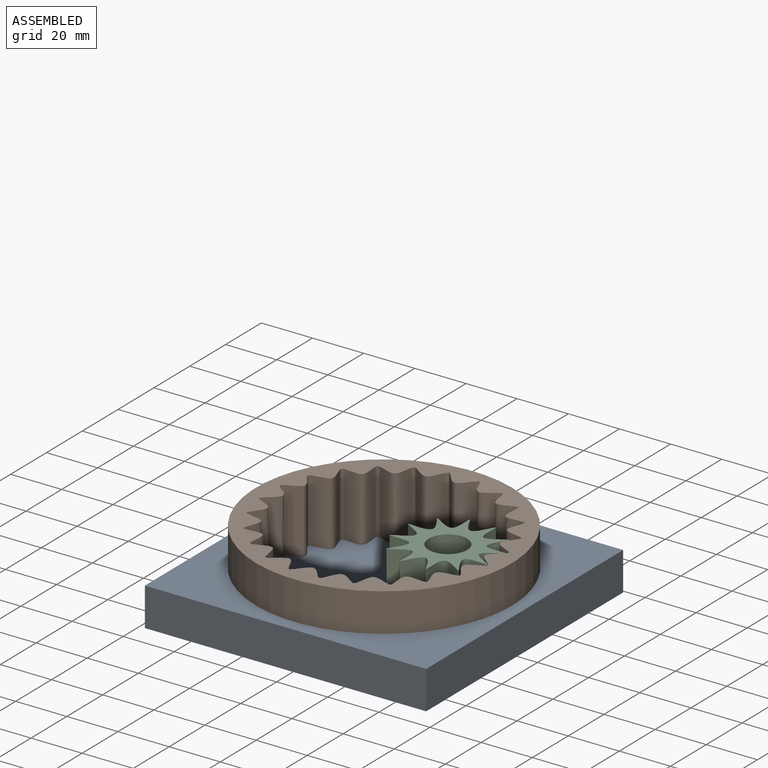
[diagram: assembled view]
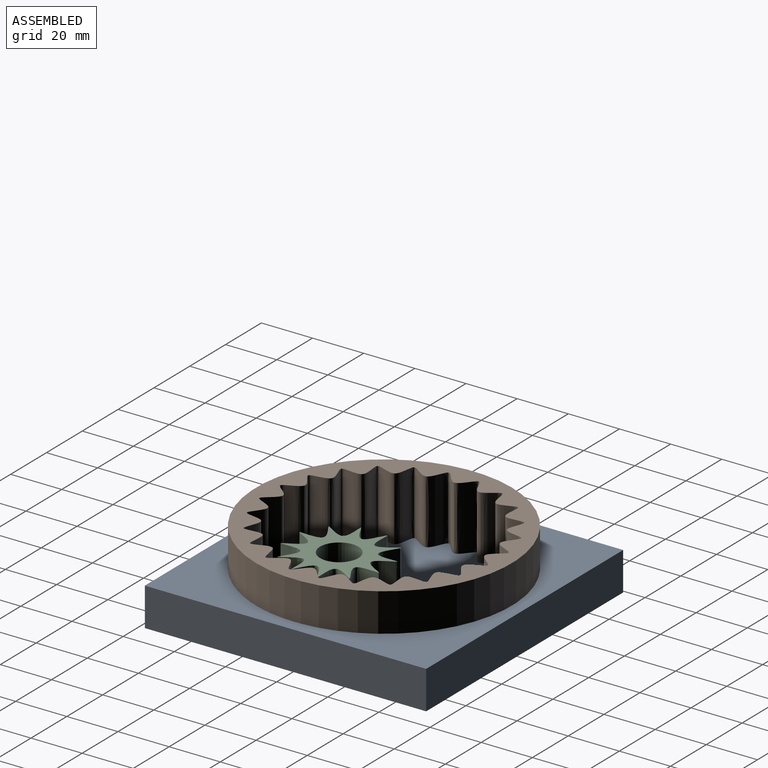
[diagram: assembled view, second angle]
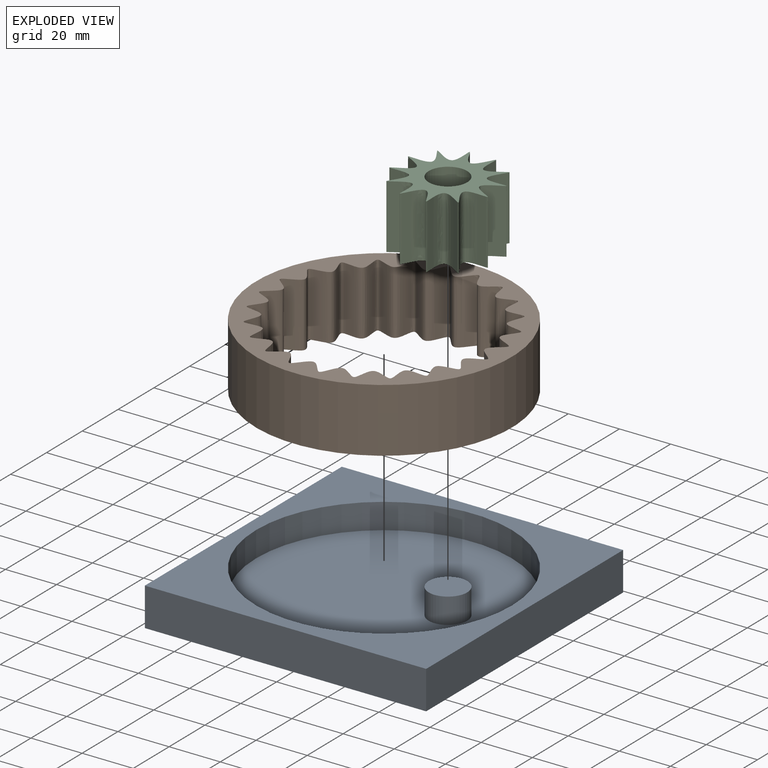
[diagram: exploded view]
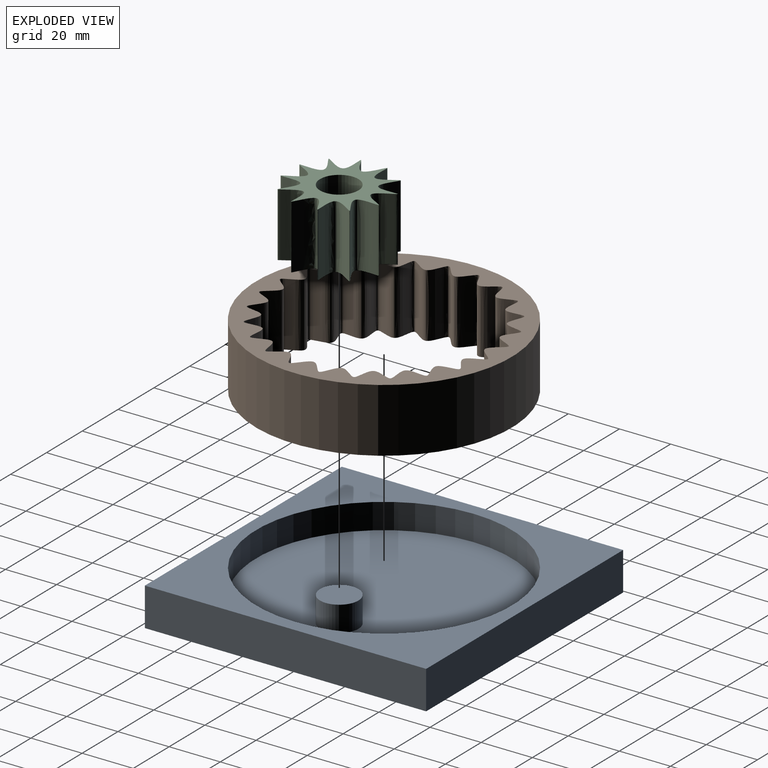
[diagram: exploded view, second angle]
ASSEMBLY  parts=3 mates=2
PART A: 10 faces, bbox 110x110x15 mm
  f0: plane 100x100mm, normal (0,0,1), area 7676.4mm2, adj f6,f8
  f1: plane 110x15mm, normal (1,0,0), area 1650mm2, adj f2,f4,f5,f7
  f2: plane 110x15mm, normal (0,1,0), area 1650mm2, adj f1,f3,f5,f7
  f3: plane 110x15mm, normal (-1,0,0), area 1650mm2, adj f2,f4,f5,f7
  f4: plane 110x15mm, normal (0,-1,0), area 1650mm2, adj f1,f3,f5,f7
  f5: plane 110x110mm, normal (0,0,-1), area 12100mm2, adj f1,f2,f3,f4
  f6: cylinder r=50mm len=100mm, axis (0,0,-1), area 3141.6mm2, adj f0,f7
  f7: plane 110x110mm, normal (0,0,1), area 4246mm2, adj f1,f2,f3,f4,f6
  f8: cylinder r=7.52mm len=15.04mm, axis (0,0,-1), area 472.5mm2, adj f0,f9
  f9: plane 15.04x15.04mm, normal (0,0,1), area 177.6mm2, adj f8
PART B: 267 faces, bbox 100x100x25 mm
  f0: extruded ~25x0.72mm, area 19.2mm2, adj f1,f12,f13,f266
  f1: extruded ~25x0.83mm, area 22.1mm2, adj f0,f2,f12,f13
  f2: extruded ~25x1.29mm, area 40.5mm2, adj f1,f3,f12,f13
  f3: extruded ~25x1.31mm, area 39mm2, adj f2,f4,f12,f13
  f4: extruded ~25x0.04mm, area 1.5mm2, adj f3,f5,f12,f13
  f5: extruded ~25x1.18mm, area 41.4mm2, adj f4,f6,f12,f13
  f6: plane 25x1.18mm, normal (-0.7,0.71,0), area 41.4mm2, adj f5,f7,f12,f13
  f7: extruded ~25x2.02mm, area 62.2mm2, adj f6,f8,f12,f13
  f8: extruded ~25x0.58mm, area 14.8mm2, adj f7,f9,f12,f13
  f9: extruded ~25x2.33mm, area 77mm2, adj f8,f10,f12,f13
  f10: plane 25x1.36mm, normal (-0.57,-0.82,0), area 41.4mm2, adj f9,f12,f13,f14
  f11: cylinder r=50mm len=100mm, axis (0,0,-1), area 7854mm2, adj f12,f13
  f12: plane 100x100mm, normal (0,0,1), area 2344.1mm2, adj f0,f1,f2,f3,f4,f5,f6,f7
  f13: plane 100x100mm, normal (0,0,-1), area 2344.1mm2, adj f0,f1,f2,f3,f4,f5,f6,f7
  f14: extruded ~25x0.63mm, area 19.2mm2, adj f10,f12,f13,f15
  f15: extruded ~25x0.72mm, area 22.1mm2, adj f12,f13,f14,f16
  f16: extruded ~25x1.2mm, area 40.5mm2, adj f12,f13,f15,f17
  f17: extruded ~25x1.07mm, area 39mm2, adj f12,f13,f16,f18
  f18: extruded ~25x0.05mm, area 1.5mm2, adj f12,f13,f17,f19
  f19: extruded ~25x1.44mm, area 41.4mm2, adj f12,f13,f18,f20
  f20: plane 25x1.44mm, normal (-0.49,0.87,0), area 41.4mm2, adj f12,f13,f19,f21
  f21: extruded ~25x1.89mm, area 62.2mm2, adj f12,f13,f20,f22
  f22: extruded ~25x0.55mm, area 14.8mm2, adj f12,f13,f21,f23
  f23: extruded ~25x2.74mm, area 77mm2, adj f12,f13,f22,f24
  f24: plane 25x1.27mm, normal (-0.77,-0.64,0), area 41.4mm2, adj f12,f13,f23,f25
  f25: extruded ~25x0.59mm, area 19.2mm2, adj f12,f13,f24,f26
  f26: extruded ~25x0.68mm, area 22.1mm2, adj f12,f13,f25,f27
  f27: extruded ~25x1.42mm, area 40.5mm2, adj f12,f13,f26,f28
  f28: extruded ~25x1.31mm, area 39mm2, adj f12,f13,f27,f29
  f29: extruded ~25x0.06mm, area 1.5mm2, adj f12,f13,f28,f30
  f30: extruded ~25x1.6mm, area 41.4mm2, adj f12,f13,f29,f31
  f31: plane 25x1.6mm, normal (-0.25,0.97,0), area 41.4mm2, adj f12,f13,f30,f32
  f32: extruded ~25x2.23mm, area 62.2mm2, adj f12,f13,f31,f33
  f33: extruded ~25x0.47mm, area 14.8mm2, adj f12,f13,f32,f34
  f34: extruded ~25x2.96mm, area 77mm2, adj f12,f13,f33,f35
  f35: plane 25x1.5mm, normal (-0.91,-0.42,0), area 41.4mm2, adj f12,f13,f34,f36
  f36: extruded ~25x0.7mm, area 19.2mm2, adj f12,f13,f35,f37
  f37: extruded ~25x0.8mm, area 22.1mm2, adj f12,f13,f36,f38
  f38: extruded ~25x1.54mm, area 40.5mm2, adj f12,f13,f37,f39
  f39: extruded ~25x1.46mm, area 39mm2, adj f12,f13,f38,f40
  f40: extruded ~25x0.06mm, area 1.5mm2, adj f12,f13,f39,f41
  f41: extruded ~25x1.66mm, area 41.4mm2, adj f12,f13,f40,f42
  f42: plane 25x1.66mm, normal (0.01,1,0), area 41.4mm2, adj f12,f13,f41,f43
  f43: extruded ~25x2.43mm, area 62.2mm2, adj f12,f13,f42,f44
  f44: extruded ~25x0.46mm, area 14.8mm2, adj f12,f13,f43,f45
  f45: extruded ~25x2.98mm, area 77mm2, adj f12,f13,f44,f46
  f46: plane 25x1.63mm, normal (-0.98,-0.17,0), area 41.4mm2, adj f12,f13,f45,f47
  f47: extruded ~25x0.76mm, area 19.2mm2, adj f12,f13,f46,f48
  f48: extruded ~25x0.87mm, area 22.1mm2, adj f12,f13,f47,f49
  f49: extruded ~25x1.56mm, area 40.5mm2, adj f12,f13,f48,f50
  f50: extruded ~25x1.51mm, area 39mm2, adj f12,f13,f49,f51
  f51: extruded ~25x0.06mm, area 1.5mm2, adj f12,f13,f50,f52
  f52: extruded ~25x1.6mm, area 41.4mm2, adj f12,f13,f51,f53
  f53: plane 25x1.6mm, normal (0.27,0.96,0), area 41.4mm2, adj f12,f13,f52,f54
  f54: extruded ~25x2.46mm, area 62.2mm2, adj f12,f13,f53,f55
  f55: extruded ~25x0.54mm, area 14.8mm2, adj f12,f13,f54,f56
  f56: extruded ~25x2.8mm, area 77mm2, adj f12,f13,f55,f57
  f57: plane 25x1.65mm, normal (-1,0.09,0), area 41.4mm2, adj f12,f13,f56,f58
  f58: extruded ~25x0.77mm, area 19.2mm2, adj f12,f13,f57,f59
  f59: extruded ~25x0.88mm, area 22.1mm2, adj f12,f13,f58,f60
  f60: extruded ~25x1.47mm, area 40.5mm2, adj f12,f13,f59,f61
  f61: extruded ~25x1.46mm, area 39mm2, adj f12,f13,f60,f62
  f62: extruded ~25x0.05mm, area 1.5mm2, adj f12,f13,f61,f63
  f63: extruded ~25x1.43mm, area 41.4mm2, adj f12,f13,f62,f64
  f64: plane 25x1.43mm, normal (0.51,0.86,0), area 41.4mm2, adj f12,f13,f63,f65
  f65: extruded ~25x2.32mm, area 62.2mm2, adj f12,f13,f64,f66
  f66: extruded ~25x0.58mm, area 14.8mm2, adj f12,f13,f65,f67
  f67: extruded ~25x2.43mm, area 77mm2, adj f12,f13,f66,f68
  f68: plane 25x1.56mm, normal (-0.94,0.34,0), area 41.4mm2, adj f12,f13,f67,f69
  f69: extruded ~25x0.72mm, area 19.2mm2, adj f12,f13,f68,f70
  f70: extruded ~25x0.83mm, area 22.1mm2, adj f12,f13,f69,f71
  f71: extruded ~25x1.29mm, area 40.5mm2, adj f12,f13,f70,f72
  f72: extruded ~25x1.31mm, area 39mm2, adj f12,f13,f71,f73
  f73: extruded ~25x0.04mm, area 1.5mm2, adj f12,f13,f72,f74
  f74: extruded ~25x1.18mm, area 41.4mm2, adj f12,f13,f73,f75
  f75: plane 25x1.18mm, normal (0.71,0.7,0), area 41.4mm2, adj f12,f13,f74,f76
  f76: extruded ~25x2.02mm, area 62.2mm2, adj f12,f13,f75,f77
  f77: extruded ~25x0.58mm, area 14.8mm2, adj f12,f13,f76,f78
  f78: extruded ~25x2.33mm, area 77mm2, adj f12,f13,f77,f79
  f79: plane 25x1.36mm, normal (-0.82,0.57,0), area 41.4mm2, adj f12,f13,f78,f80
  f80: extruded ~25x0.63mm, area 19.2mm2, adj f12,f13,f79,f81
  f81: extruded ~25x0.72mm, area 22.1mm2, adj f12,f13,f80,f82
  f82: extruded ~25x1.2mm, area 40.5mm2, adj f12,f13,f81,f83
  f83: extruded ~25x1.07mm, area 39mm2, adj f12,f13,f82,f84
  f84: extruded ~25x0.05mm, area 1.5mm2, adj f12,f13,f83,f85
  f85: extruded ~25x1.44mm, area 41.4mm2, adj f12,f13,f84,f86
  f86: plane 25x1.44mm, normal (0.87,0.49,0), area 41.4mm2, adj f12,f13,f85,f87
  f87: extruded ~25x1.89mm, area 62.2mm2, adj f12,f13,f86,f88
  f88: extruded ~25x0.55mm, area 14.8mm2, adj f12,f13,f87,f89
  f89: extruded ~25x2.74mm, area 77mm2, adj f12,f13,f88,f90
  f90: plane 25x1.27mm, normal (-0.64,0.77,0), area 41.4mm2, adj f12,f13,f89,f91
  f91: extruded ~25x0.59mm, area 19.2mm2, adj f12,f13,f90,f92
  f92: extruded ~25x0.68mm, area 22.1mm2, adj f12,f13,f91,f93
  f93: extruded ~25x1.42mm, area 40.5mm2, adj f12,f13,f92,f94
  f94: extruded ~25x1.31mm, area 39mm2, adj f12,f13,f93,f95
  f95: extruded ~25x0.06mm, area 1.5mm2, adj f12,f13,f94,f96
  f96: extruded ~25x1.6mm, area 41.4mm2, adj f12,f13,f95,f97
  f97: plane 25x1.6mm, normal (0.97,0.25,0), area 41.4mm2, adj f12,f13,f96,f98
  f98: extruded ~25x2.23mm, area 62.2mm2, adj f12,f13,f97,f99
  f99: extruded ~25x0.47mm, area 14.8mm2, adj f12,f13,f98,f100
  f100: extruded ~25x2.96mm, area 77mm2, adj f12,f13,f99,f101
  f101: plane 25x1.5mm, normal (-0.42,0.91,0), area 41.4mm2, adj f12,f13,f100,f102
  f102: extruded ~25x0.7mm, area 19.2mm2, adj f12,f13,f101,f103
  f103: extruded ~25x0.8mm, area 22.1mm2, adj f12,f13,f102,f104
  f104: extruded ~25x1.54mm, area 40.5mm2, adj f12,f13,f103,f105
  f105: extruded ~25x1.46mm, area 39mm2, adj f12,f13,f104,f106
  f106: extruded ~25x0.06mm, area 1.5mm2, adj f12,f13,f105,f107
  f107: extruded ~25x1.66mm, area 41.4mm2, adj f12,f13,f106,f108
  f108: plane 25x1.66mm, normal (1,-0.01,0), area 41.4mm2, adj f12,f13,f107,f109
  f109: extruded ~25x2.43mm, area 62.2mm2, adj f12,f13,f108,f110
  f110: extruded ~25x0.46mm, area 14.8mm2, adj f12,f13,f109,f111
  f111: extruded ~25x2.98mm, area 77mm2, adj f12,f13,f110,f112
  f112: plane 25x1.63mm, normal (-0.17,0.98,0), area 41.4mm2, adj f12,f13,f111,f113
  f113: extruded ~25x0.76mm, area 19.2mm2, adj f12,f13,f112,f114
  f114: extruded ~25x0.87mm, area 22.1mm2, adj f12,f13,f113,f115
  f115: extruded ~25x1.56mm, area 40.5mm2, adj f12,f13,f114,f116
  f116: extruded ~25x1.51mm, area 39mm2, adj f12,f13,f115,f117
  f117: extruded ~25x0.06mm, area 1.5mm2, adj f12,f13,f116,f118
  f118: extruded ~25x1.6mm, area 41.4mm2, adj f12,f13,f117,f119
  f119: plane 25x1.6mm, normal (0.96,-0.27,0), area 41.4mm2, adj f12,f13,f118,f120
  f120: extruded ~25x2.46mm, area 62.2mm2, adj f12,f13,f119,f121
  f121: extruded ~25x0.54mm, area 14.8mm2, adj f12,f13,f120,f122
  f122: extruded ~25x2.8mm, area 77mm2, adj f12,f13,f121,f123
  f123: plane 25x1.65mm, normal (0.09,1,0), area 41.4mm2, adj f12,f13,f122,f124
  f124: extruded ~25x0.77mm, area 19.2mm2, adj f12,f13,f123,f125
  f125: extruded ~25x0.88mm, area 22.1mm2, adj f12,f13,f124,f126
  f126: extruded ~25x1.47mm, area 40.5mm2, adj f12,f13,f125,f127
  f127: extruded ~25x1.46mm, area 39mm2, adj f12,f13,f126,f128
  f128: extruded ~25x0.05mm, area 1.5mm2, adj f12,f13,f127,f129
  f129: extruded ~25x1.43mm, area 41.4mm2, adj f12,f13,f128,f130
  f130: plane 25x1.43mm, normal (0.86,-0.51,0), area 41.4mm2, adj f12,f13,f129,f131
  f131: extruded ~25x2.32mm, area 62.2mm2, adj f12,f13,f130,f132
  f132: extruded ~25x0.58mm, area 14.8mm2, adj f12,f13,f131,f133
  f133: extruded ~25x2.43mm, area 77mm2, adj f12,f13,f132,f134
  f134: plane 25x1.56mm, normal (0.34,0.94,0), area 41.4mm2, adj f12,f13,f133,f135
  f135: extruded ~25x0.72mm, area 19.2mm2, adj f12,f13,f134,f136
  f136: extruded ~25x0.83mm, area 22.1mm2, adj f12,f13,f135,f137
  f137: extruded ~25x1.29mm, area 40.5mm2, adj f12,f13,f136,f138
  f138: extruded ~25x1.31mm, area 39mm2, adj f12,f13,f137,f139
  f139: extruded ~25x0.04mm, area 1.5mm2, adj f12,f13,f138,f140
  f140: extruded ~25x1.18mm, area 41.4mm2, adj f12,f13,f139,f141
  f141: plane 25x1.18mm, normal (0.7,-0.71,0), area 41.4mm2, adj f12,f13,f140,f142
  f142: extruded ~25x2.02mm, area 62.2mm2, adj f12,f13,f141,f143
  f143: extruded ~25x0.58mm, area 14.8mm2, adj f12,f13,f142,f144
  f144: extruded ~25x2.33mm, area 77mm2, adj f12,f13,f143,f145
  f145: plane 25x1.36mm, normal (0.57,0.82,0), area 41.4mm2, adj f12,f13,f144,f146
  f146: extruded ~25x0.63mm, area 19.2mm2, adj f12,f13,f145,f147
  f147: extruded ~25x0.72mm, area 22.1mm2, adj f12,f13,f146,f148
  f148: extruded ~25x1.2mm, area 40.5mm2, adj f12,f13,f147,f149
  f149: extruded ~25x1.07mm, area 39mm2, adj f12,f13,f148,f150
  f150: extruded ~25x0.05mm, area 1.5mm2, adj f12,f13,f149,f151
  f151: extruded ~25x1.44mm, area 41.4mm2, adj f12,f13,f150,f152
  f152: plane 25x1.44mm, normal (0.49,-0.87,0), area 41.4mm2, adj f12,f13,f151,f153
  f153: extruded ~25x1.89mm, area 62.2mm2, adj f12,f13,f152,f154
  f154: extruded ~25x0.55mm, area 14.8mm2, adj f12,f13,f153,f155
  f155: extruded ~25x2.74mm, area 77mm2, adj f12,f13,f154,f156
  f156: plane 25x1.27mm, normal (0.77,0.64,0), area 41.4mm2, adj f12,f13,f155,f157
  f157: extruded ~25x0.59mm, area 19.2mm2, adj f12,f13,f156,f158
  f158: extruded ~25x0.68mm, area 22.1mm2, adj f12,f13,f157,f159
  f159: extruded ~25x1.42mm, area 40.5mm2, adj f12,f13,f158,f160
  f160: extruded ~25x1.31mm, area 39mm2, adj f12,f13,f159,f161
  f161: extruded ~25x0.06mm, area 1.5mm2, adj f12,f13,f160,f162
  f162: extruded ~25x1.6mm, area 41.4mm2, adj f12,f13,f161,f163
  f163: plane 25x1.6mm, normal (0.25,-0.97,0), area 41.4mm2, adj f12,f13,f162,f164
  f164: extruded ~25x2.23mm, area 62.2mm2, adj f12,f13,f163,f165
  f165: extruded ~25x0.47mm, area 14.8mm2, adj f12,f13,f164,f166
  f166: extruded ~25x2.96mm, area 77mm2, adj f12,f13,f165,f167
  f167: plane 25x1.5mm, normal (0.91,0.42,0), area 41.4mm2, adj f12,f13,f166,f168
  f168: extruded ~25x0.7mm, area 19.2mm2, adj f12,f13,f167,f169
  f169: extruded ~25x0.8mm, area 22.1mm2, adj f12,f13,f168,f170
  f170: extruded ~25x1.54mm, area 40.5mm2, adj f12,f13,f169,f171
  f171: extruded ~25x1.46mm, area 39mm2, adj f12,f13,f170,f172
  f172: extruded ~25x0.06mm, area 1.5mm2, adj f12,f13,f171,f173
  f173: extruded ~25x1.66mm, area 41.4mm2, adj f12,f13,f172,f174
  f174: plane 25x1.66mm, normal (-0.01,-1,0), area 41.4mm2, adj f12,f13,f173,f175
  f175: extruded ~25x2.43mm, area 62.2mm2, adj f12,f13,f174,f176
  f176: extruded ~25x0.46mm, area 14.8mm2, adj f12,f13,f175,f177
  f177: extruded ~25x2.98mm, area 77mm2, adj f12,f13,f176,f178
  f178: plane 25x1.63mm, normal (0.98,0.17,0), area 41.4mm2, adj f12,f13,f177,f179
  f179: extruded ~25x0.76mm, area 19.2mm2, adj f12,f13,f178,f180
  f180: extruded ~25x0.87mm, area 22.1mm2, adj f12,f13,f179,f181
  f181: extruded ~25x1.56mm, area 40.5mm2, adj f12,f13,f180,f182
  f182: extruded ~25x1.51mm, area 39mm2, adj f12,f13,f181,f183
  f183: extruded ~25x0.06mm, area 1.5mm2, adj f12,f13,f182,f184
  f184: extruded ~25x1.6mm, area 41.4mm2, adj f12,f13,f183,f185
  f185: plane 25x1.6mm, normal (-0.27,-0.96,0), area 41.4mm2, adj f12,f13,f184,f186
  f186: extruded ~25x2.46mm, area 62.2mm2, adj f12,f13,f185,f187
  f187: extruded ~25x0.54mm, area 14.8mm2, adj f12,f13,f186,f188
  f188: extruded ~25x2.8mm, area 77mm2, adj f12,f13,f187,f189
  f189: plane 25x1.65mm, normal (1,-0.09,0), area 41.4mm2, adj f12,f13,f188,f190
  f190: extruded ~25x0.77mm, area 19.2mm2, adj f12,f13,f189,f191
  f191: extruded ~25x0.88mm, area 22.1mm2, adj f12,f13,f190,f192
  f192: extruded ~25x1.47mm, area 40.5mm2, adj f12,f13,f191,f193
  f193: extruded ~25x1.46mm, area 39mm2, adj f12,f13,f192,f194
  f194: extruded ~25x0.05mm, area 1.5mm2, adj f12,f13,f193,f195
  f195: extruded ~25x1.43mm, area 41.4mm2, adj f12,f13,f194,f196
  f196: plane 25x1.43mm, normal (-0.51,-0.86,0), area 41.4mm2, adj f12,f13,f195,f197
  f197: extruded ~25x2.32mm, area 62.2mm2, adj f12,f13,f196,f198
  f198: extruded ~25x0.58mm, area 14.8mm2, adj f12,f13,f197,f199
  f199: extruded ~25x2.43mm, area 77mm2, adj f12,f13,f198,f200
  f200: plane 25x1.56mm, normal (0.94,-0.34,0), area 41.4mm2, adj f12,f13,f199,f201
  f201: extruded ~25x0.72mm, area 19.2mm2, adj f12,f13,f200,f202
  f202: extruded ~25x0.83mm, area 22.1mm2, adj f12,f13,f201,f203
  f203: extruded ~25x1.29mm, area 40.5mm2, adj f12,f13,f202,f204
  f204: extruded ~25x1.31mm, area 39mm2, adj f12,f13,f203,f205
  f205: extruded ~25x0.04mm, area 1.5mm2, adj f12,f13,f204,f206
  f206: extruded ~25x1.18mm, area 41.4mm2, adj f12,f13,f205,f207
  f207: plane 25x1.18mm, normal (-0.71,-0.7,0), area 41.4mm2, adj f12,f13,f206,f208
  f208: extruded ~25x2.02mm, area 62.2mm2, adj f12,f13,f207,f209
  f209: extruded ~25x0.58mm, area 14.8mm2, adj f12,f13,f208,f210
  f210: extruded ~25x2.33mm, area 77mm2, adj f12,f13,f209,f211
  f211: plane 25x1.36mm, normal (0.82,-0.57,0), area 41.4mm2, adj f12,f13,f210,f212
  f212: extruded ~25x0.63mm, area 19.2mm2, adj f12,f13,f211,f213
  f213: extruded ~25x0.72mm, area 22.1mm2, adj f12,f13,f212,f214
  f214: extruded ~25x1.2mm, area 40.5mm2, adj f12,f13,f213,f215
  f215: extruded ~25x1.07mm, area 39mm2, adj f12,f13,f214,f216
  f216: extruded ~25x0.05mm, area 1.5mm2, adj f12,f13,f215,f217
  f217: extruded ~25x1.44mm, area 41.4mm2, adj f12,f13,f216,f218
  f218: plane 25x1.44mm, normal (-0.87,-0.49,0), area 41.4mm2, adj f12,f13,f217,f219
  f219: extruded ~25x1.89mm, area 62.2mm2, adj f12,f13,f218,f220
  f220: extruded ~25x0.55mm, area 14.8mm2, adj f12,f13,f219,f221
  f221: extruded ~25x2.74mm, area 77mm2, adj f12,f13,f220,f222
  f222: plane 25x1.27mm, normal (0.64,-0.77,0), area 41.4mm2, adj f12,f13,f221,f223
  f223: extruded ~25x0.59mm, area 19.2mm2, adj f12,f13,f222,f224
  f224: extruded ~25x0.68mm, area 22.1mm2, adj f12,f13,f223,f225
  f225: extruded ~25x1.42mm, area 40.5mm2, adj f12,f13,f224,f226
  f226: extruded ~25x1.31mm, area 39mm2, adj f12,f13,f225,f227
  f227: extruded ~25x0.06mm, area 1.5mm2, adj f12,f13,f226,f228
  f228: extruded ~25x1.6mm, area 41.4mm2, adj f12,f13,f227,f229
  f229: plane 25x1.6mm, normal (-0.97,-0.25,0), area 41.4mm2, adj f12,f13,f228,f230
  f230: extruded ~25x2.23mm, area 62.2mm2, adj f12,f13,f229,f231
  f231: extruded ~25x0.47mm, area 14.8mm2, adj f12,f13,f230,f232
  f232: extruded ~25x2.96mm, area 77mm2, adj f12,f13,f231,f233
  f233: plane 25x1.5mm, normal (0.42,-0.91,0), area 41.4mm2, adj f12,f13,f232,f234
  f234: extruded ~25x0.7mm, area 19.2mm2, adj f12,f13,f233,f235
  f235: extruded ~25x0.8mm, area 22.1mm2, adj f12,f13,f234,f236
  f236: extruded ~25x1.54mm, area 40.5mm2, adj f12,f13,f235,f237
  f237: extruded ~25x1.46mm, area 39mm2, adj f12,f13,f236,f238
  f238: extruded ~25x0.06mm, area 1.5mm2, adj f12,f13,f237,f239
  f239: extruded ~25x1.66mm, area 41.4mm2, adj f12,f13,f238,f240
  f240: plane 25x1.66mm, normal (-1,0.01,0), area 41.4mm2, adj f12,f13,f239,f241
  f241: extruded ~25x2.43mm, area 62.2mm2, adj f12,f13,f240,f242
  f242: extruded ~25x0.46mm, area 14.8mm2, adj f12,f13,f241,f243
  f243: extruded ~25x2.98mm, area 77mm2, adj f12,f13,f242,f244
  f244: plane 25x1.63mm, normal (0.17,-0.98,0), area 41.4mm2, adj f12,f13,f243,f245
  f245: extruded ~25x0.76mm, area 19.2mm2, adj f12,f13,f244,f246
  f246: extruded ~25x0.87mm, area 22.1mm2, adj f12,f13,f245,f247
  f247: extruded ~25x1.56mm, area 40.5mm2, adj f12,f13,f246,f248
  f248: extruded ~25x1.51mm, area 39mm2, adj f12,f13,f247,f249
  f249: extruded ~25x0.06mm, area 1.5mm2, adj f12,f13,f248,f250
  f250: extruded ~25x1.6mm, area 41.4mm2, adj f12,f13,f249,f251
  f251: plane 25x1.6mm, normal (-0.96,0.27,0), area 41.4mm2, adj f12,f13,f250,f252
  f252: extruded ~25x2.46mm, area 62.2mm2, adj f12,f13,f251,f253
  f253: extruded ~25x0.54mm, area 14.8mm2, adj f12,f13,f252,f254
  f254: extruded ~25x2.8mm, area 77mm2, adj f12,f13,f253,f255
  f255: plane 25x1.65mm, normal (-0.09,-1,0), area 41.4mm2, adj f12,f13,f254,f256
  f256: extruded ~25x0.77mm, area 19.2mm2, adj f12,f13,f255,f257
  f257: extruded ~25x0.88mm, area 22.1mm2, adj f12,f13,f256,f258
  f258: extruded ~25x1.47mm, area 40.5mm2, adj f12,f13,f257,f259
  f259: extruded ~25x1.46mm, area 39mm2, adj f12,f13,f258,f260
  f260: extruded ~25x0.05mm, area 1.5mm2, adj f12,f13,f259,f261
  f261: extruded ~25x1.43mm, area 41.4mm2, adj f12,f13,f260,f262
  f262: plane 25x1.43mm, normal (-0.86,0.51,0), area 41.4mm2, adj f12,f13,f261,f263
  f263: extruded ~25x2.32mm, area 62.2mm2, adj f12,f13,f262,f264
  f264: extruded ~25x0.58mm, area 14.8mm2, adj f12,f13,f263,f265
  f265: extruded ~25x2.43mm, area 77mm2, adj f12,f13,f264,f266
  f266: plane 25x1.56mm, normal (-0.34,-0.94,0), area 41.4mm2, adj f0,f12,f13,f265
PART C: 111 faces, bbox 39.8x39.8x25 mm
  f0: extruded ~25x0.52mm, area 13mm2, adj f1,f8,f9,f10
  f1: extruded ~25x3.02mm, area 101.7mm2, adj f0,f2,f9,f10
  f2: extruded ~25x1.32mm, area 41.4mm2, adj f1,f3,f9,f10
  f3: plane 25x1.32mm, normal (0.61,-0.8,0), area 41.4mm2, adj f2,f4,f9,f10
  f4: extruded ~25x0.63mm, area 22.6mm2, adj f3,f5,f9,f10
  f5: extruded ~25x0.88mm, area 22.6mm2, adj f4,f6,f9,f10
  f6: plane 25x1.63mm, normal (-0.18,0.98,0), area 41.4mm2, adj f5,f9,f10,f108
  f7: extruded ~25x1.56mm, area 41.4mm2, adj f8,f9,f10,f17
  f8: extruded ~25x3.62mm, area 114.7mm2, adj f0,f7,f9,f10
  f9: plane 39.8x39.8mm, normal (0,0,1), area 518mm2, adj f0,f1,f2,f3,f4,f5,f6,f7
  f10: plane 39.8x39.8mm, normal (0,0,-1), area 518mm2, adj f0,f1,f2,f3,f4,f5,f6,f7
  f11: extruded ~25x0.43mm, area 13mm2, adj f9,f10,f12,f19
  f12: extruded ~25x3.79mm, area 101.7mm2, adj f9,f10,f11,f13
  f13: extruded ~25x1.64mm, area 41.4mm2, adj f9,f10,f12,f14
  f14: plane 25x1.64mm, normal (0.13,-0.99,0), area 41.4mm2, adj f9,f10,f13,f15
  f15: extruded ~25x0.85mm, area 22.6mm2, adj f9,f10,f14,f16
  f16: extruded ~25x0.78mm, area 22.6mm2, adj f9,f10,f15,f17
  f17: plane 25x1.56mm, normal (0.33,0.94,0), area 41.4mm2, adj f7,f9,f10,f16
  f18: extruded ~25x1.26mm, area 41.4mm2, adj f9,f10,f19,f26
  f19: extruded ~25x4.02mm, area 114.7mm2, adj f9,f10,f11,f18
  f20: extruded ~25x0.46mm, area 13mm2, adj f9,f10,f21,f28
  f21: extruded ~25x3.93mm, area 101.7mm2, adj f9,f10,f20,f22
  f22: extruded ~25x1.53mm, area 41.4mm2, adj f9,f10,f21,f23
  f23: plane 25x1.53mm, normal (-0.39,-0.92,0), area 41.4mm2, adj f9,f10,f22,f24
  f24: extruded ~25x0.85mm, area 22.6mm2, adj f9,f10,f23,f25
  f25: extruded ~25x0.74mm, area 22.6mm2, adj f9,f10,f24,f26
  f26: plane 25x1.26mm, normal (0.76,0.65,0), area 41.4mm2, adj f9,f10,f18,f25
  f27: extruded ~25x1.63mm, area 41.4mm2, adj f9,f10,f28,f35
  f28: extruded ~25x4.41mm, area 114.7mm2, adj f9,f10,f20,f27
  f29: extruded ~25x0.52mm, area 13mm2, adj f9,f10,f30,f37
  f30: extruded ~25x3.02mm, area 101.7mm2, adj f9,f10,f29,f31
  f31: extruded ~25x1.32mm, area 41.4mm2, adj f9,f10,f30,f32
  f32: plane 25x1.32mm, normal (-0.8,-0.61,0), area 41.4mm2, adj f9,f10,f31,f33
  f33: extruded ~25x0.63mm, area 22.6mm2, adj f9,f10,f32,f34
  f34: extruded ~25x0.88mm, area 22.6mm2, adj f9,f10,f33,f35
  f35: plane 25x1.63mm, normal (0.98,0.18,0), area 41.4mm2, adj f9,f10,f27,f34
  f36: extruded ~25x1.56mm, area 41.4mm2, adj f9,f10,f37,f44
  f37: extruded ~25x3.62mm, area 114.7mm2, adj f9,f10,f29,f36
  f38: extruded ~25x0.43mm, area 13mm2, adj f9,f10,f39,f46
  f39: extruded ~25x3.79mm, area 101.7mm2, adj f9,f10,f38,f40
  f40: extruded ~25x1.64mm, area 41.4mm2, adj f9,f10,f39,f41
  f41: plane 25x1.64mm, normal (-0.99,-0.13,0), area 41.4mm2, adj f9,f10,f40,f42
  f42: extruded ~25x0.85mm, area 22.6mm2, adj f9,f10,f41,f43
  f43: extruded ~25x0.78mm, area 22.6mm2, adj f9,f10,f42,f44
  f44: plane 25x1.56mm, normal (0.94,-0.33,0), area 41.4mm2, adj f9,f10,f36,f43
  f45: extruded ~25x1.26mm, area 41.4mm2, adj f9,f10,f46,f53
  f46: extruded ~25x4.02mm, area 114.7mm2, adj f9,f10,f38,f45
  f47: extruded ~25x0.46mm, area 13mm2, adj f9,f10,f48,f55
  f48: extruded ~25x3.93mm, area 101.7mm2, adj f9,f10,f47,f49
  f49: extruded ~25x1.53mm, area 41.4mm2, adj f9,f10,f48,f50
  f50: plane 25x1.53mm, normal (-0.92,0.39,0), area 41.4mm2, adj f9,f10,f49,f51
  f51: extruded ~25x0.85mm, area 22.6mm2, adj f9,f10,f50,f52
  f52: extruded ~25x0.74mm, area 22.6mm2, adj f9,f10,f51,f53
  f53: plane 25x1.26mm, normal (0.65,-0.76,0), area 41.4mm2, adj f9,f10,f45,f52
  f54: extruded ~25x1.63mm, area 41.4mm2, adj f9,f10,f55,f62
  f55: extruded ~25x4.41mm, area 114.7mm2, adj f9,f10,f47,f54
  f56: extruded ~25x0.52mm, area 13mm2, adj f9,f10,f57,f64
  f57: extruded ~25x3.02mm, area 101.7mm2, adj f9,f10,f56,f58
  f58: extruded ~25x1.32mm, area 41.4mm2, adj f9,f10,f57,f59
  f59: plane 25x1.32mm, normal (-0.61,0.8,0), area 41.4mm2, adj f9,f10,f58,f60
  f60: extruded ~25x0.63mm, area 22.6mm2, adj f9,f10,f59,f61
  f61: extruded ~25x0.88mm, area 22.6mm2, adj f9,f10,f60,f62
  f62: plane 25x1.63mm, normal (0.18,-0.98,0), area 41.4mm2, adj f9,f10,f54,f61
  f63: extruded ~25x1.56mm, area 41.4mm2, adj f9,f10,f64,f71
  f64: extruded ~25x3.62mm, area 114.7mm2, adj f9,f10,f56,f63
  f65: extruded ~25x0.43mm, area 13mm2, adj f9,f10,f66,f73
  f66: extruded ~25x3.79mm, area 101.7mm2, adj f9,f10,f65,f67
  f67: extruded ~25x1.64mm, area 41.4mm2, adj f9,f10,f66,f68
  f68: plane 25x1.64mm, normal (-0.13,0.99,0), area 41.4mm2, adj f9,f10,f67,f69
  f69: extruded ~25x0.85mm, area 22.6mm2, adj f9,f10,f68,f70
  f70: extruded ~25x0.78mm, area 22.6mm2, adj f9,f10,f69,f71
  f71: plane 25x1.56mm, normal (-0.33,-0.94,0), area 41.4mm2, adj f9,f10,f63,f70
  f72: extruded ~25x1.26mm, area 41.4mm2, adj f9,f10,f73,f80
  f73: extruded ~25x4.02mm, area 114.7mm2, adj f9,f10,f65,f72
  f74: extruded ~25x0.46mm, area 13mm2, adj f9,f10,f75,f82
  f75: extruded ~25x3.93mm, area 101.7mm2, adj f9,f10,f74,f76
  f76: extruded ~25x1.53mm, area 41.4mm2, adj f9,f10,f75,f77
  f77: plane 25x1.53mm, normal (0.39,0.92,0), area 41.4mm2, adj f9,f10,f76,f78
  f78: extruded ~25x0.85mm, area 22.6mm2, adj f9,f10,f77,f79
  f79: extruded ~25x0.74mm, area 22.6mm2, adj f9,f10,f78,f80
  f80: plane 25x1.26mm, normal (-0.76,-0.65,0), area 41.4mm2, adj f9,f10,f72,f79
  f81: extruded ~25x1.63mm, area 41.4mm2, adj f9,f10,f82,f89
  f82: extruded ~25x4.41mm, area 114.7mm2, adj f9,f10,f74,f81
  f83: extruded ~25x0.52mm, area 13mm2, adj f9,f10,f84,f91
  f84: extruded ~25x3.02mm, area 101.7mm2, adj f9,f10,f83,f85
  f85: extruded ~25x1.32mm, area 41.4mm2, adj f9,f10,f84,f86
  f86: plane 25x1.32mm, normal (0.8,0.61,0), area 41.4mm2, adj f9,f10,f85,f87
  f87: extruded ~25x0.63mm, area 22.6mm2, adj f9,f10,f86,f88
  f88: extruded ~25x0.88mm, area 22.6mm2, adj f9,f10,f87,f89
  f89: plane 25x1.63mm, normal (-0.98,-0.18,0), area 41.4mm2, adj f9,f10,f81,f88
  f90: extruded ~25x1.56mm, area 41.4mm2, adj f9,f10,f91,f98
  f91: extruded ~25x3.62mm, area 114.7mm2, adj f9,f10,f83,f90
  f92: extruded ~25x0.43mm, area 13mm2, adj f9,f10,f93,f100
  f93: extruded ~25x3.79mm, area 101.7mm2, adj f9,f10,f92,f94
  f94: extruded ~25x1.64mm, area 41.4mm2, adj f9,f10,f93,f95
  f95: plane 25x1.64mm, normal (0.99,0.13,0), area 41.4mm2, adj f9,f10,f94,f96
  f96: extruded ~25x0.85mm, area 22.6mm2, adj f9,f10,f95,f97
  f97: extruded ~25x0.78mm, area 22.6mm2, adj f9,f10,f96,f98
  f98: plane 25x1.56mm, normal (-0.94,0.33,0), area 41.4mm2, adj f9,f10,f90,f97
  f99: extruded ~25x1.26mm, area 41.4mm2, adj f9,f10,f100,f107
  f100: extruded ~25x4.02mm, area 114.7mm2, adj f9,f10,f92,f99
  f101: extruded ~25x0.46mm, area 13mm2, adj f9,f10,f102,f109
  f102: extruded ~25x3.93mm, area 101.7mm2, adj f9,f10,f101,f103
  f103: extruded ~25x1.53mm, area 41.4mm2, adj f9,f10,f102,f104
  f104: plane 25x1.53mm, normal (0.92,-0.39,0), area 41.4mm2, adj f9,f10,f103,f105
  f105: extruded ~25x0.85mm, area 22.6mm2, adj f9,f10,f104,f106
  f106: extruded ~25x0.74mm, area 22.6mm2, adj f9,f10,f105,f107
  f107: plane 25x1.26mm, normal (-0.65,0.76,0), area 41.4mm2, adj f9,f10,f99,f106
  f108: extruded ~25x1.63mm, area 41.4mm2, adj f6,f9,f10,f109
  f109: extruded ~25x4.41mm, area 114.7mm2, adj f9,f10,f101,f108
  f110: cylinder r=7.52mm len=25mm, axis (0,0,-1), area 1181.1mm2, adj f9,f10
PLACE A t=(25,0,5)mm
PLACE B rot(axis=(0,0,-1),79.7deg) t=(4.48,-24.59,5)mm
PLACE C rot(axis=(0,0,-1),159.3deg) t=(25,0,5)mm
MATE revolute B.f11 <-> A.f6  axis (0,0,-1) through (0,0,5)mm
MATE revolute C.f110 <-> A.f8  axis (0,0,-1) through (25,0,5)mm
